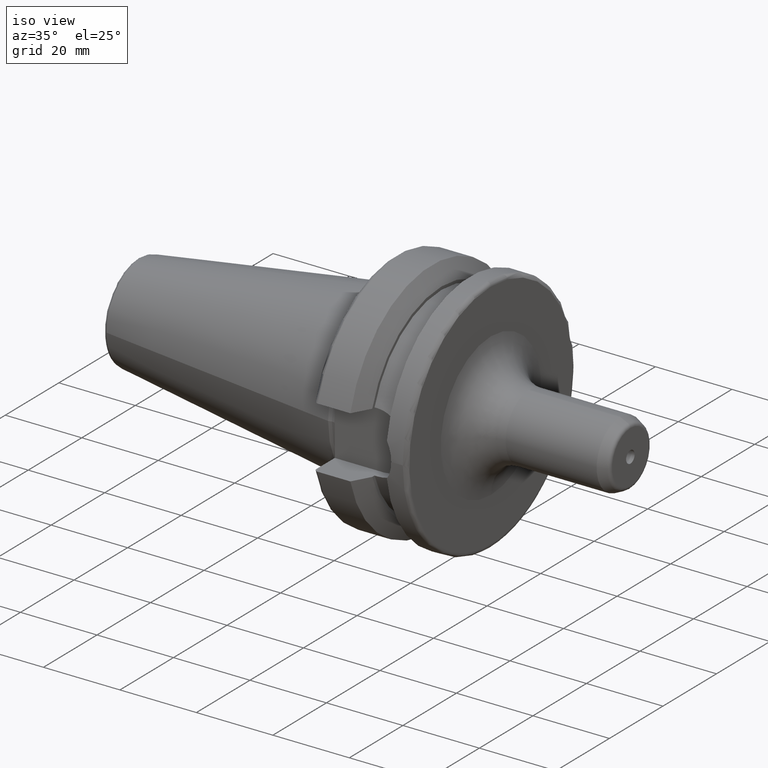
[diagram: clean part render]
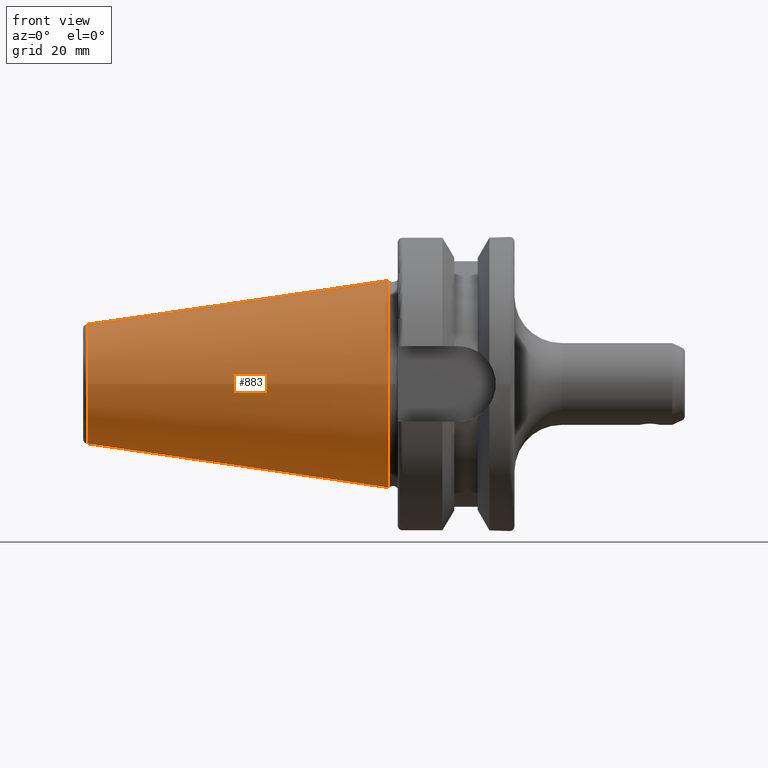
[diagram: tour spotlight — one face highlighted and labeled with its STEP entity id]
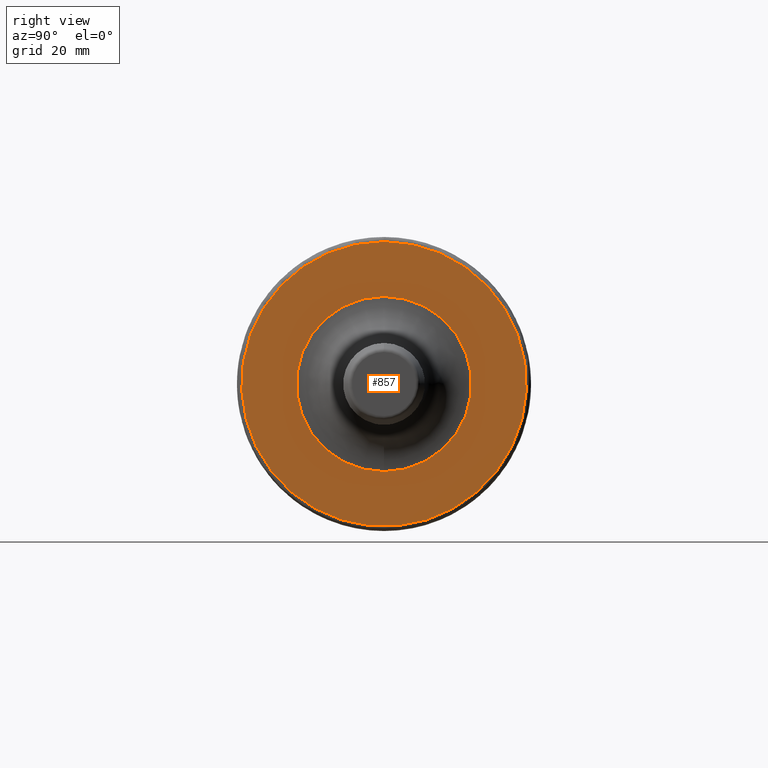
[diagram: tour spotlight — one face highlighted and labeled with its STEP entity id]
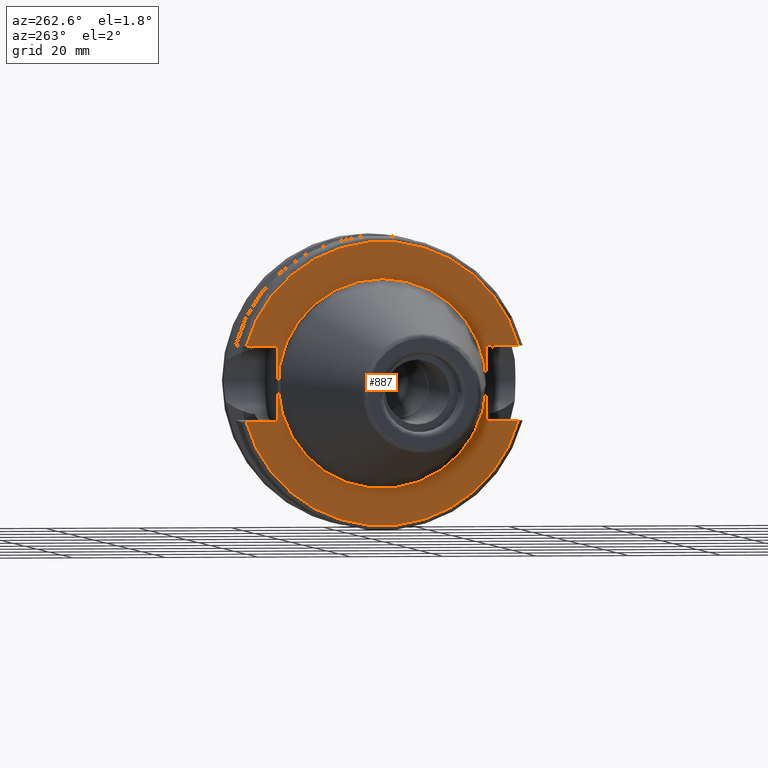
[diagram: tour spotlight — one face highlighted and labeled with its STEP entity id]
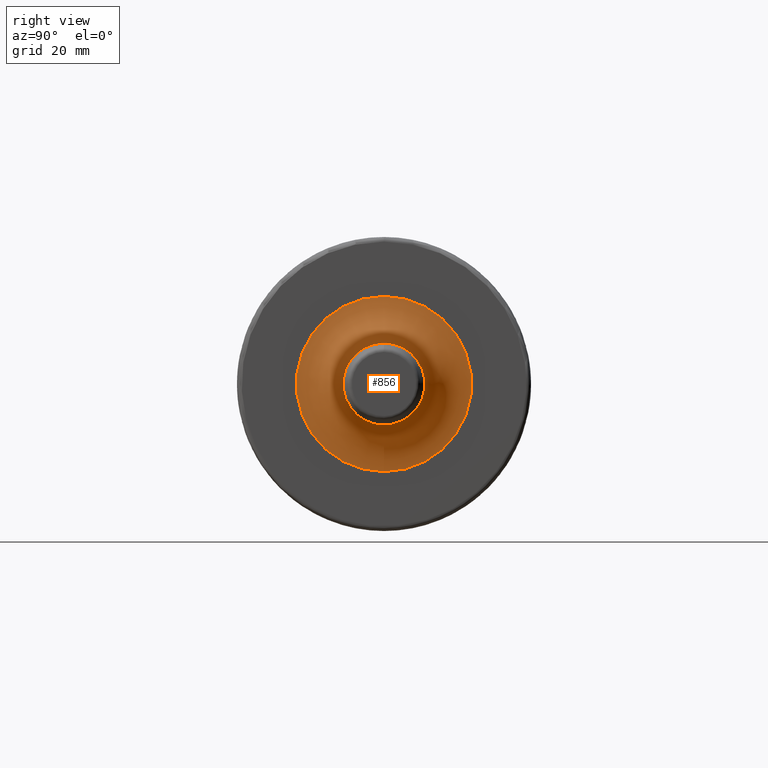
[diagram: tour spotlight — one face highlighted and labeled with its STEP entity id]
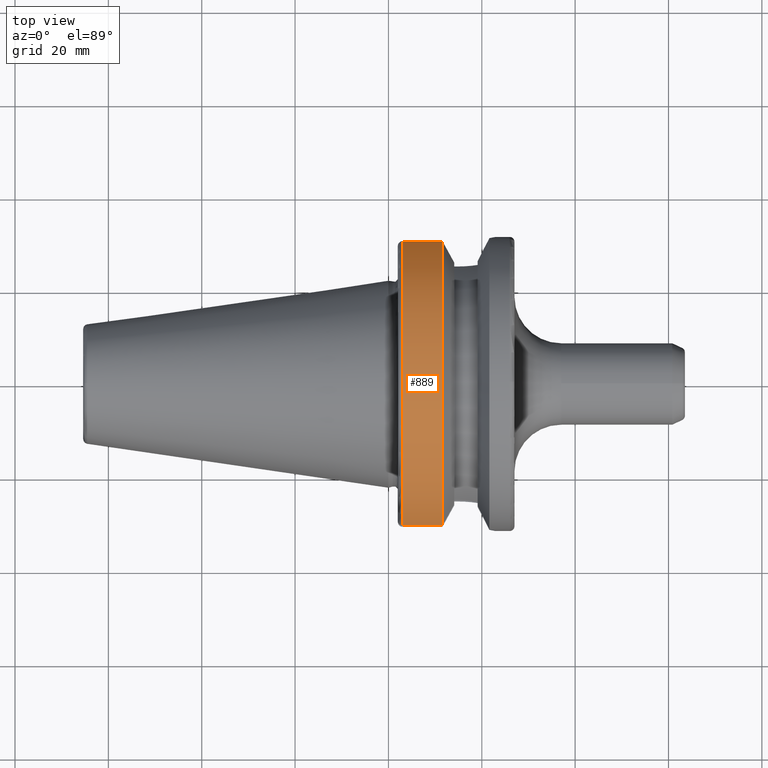
[diagram: tour spotlight — one face highlighted and labeled with its STEP entity id]
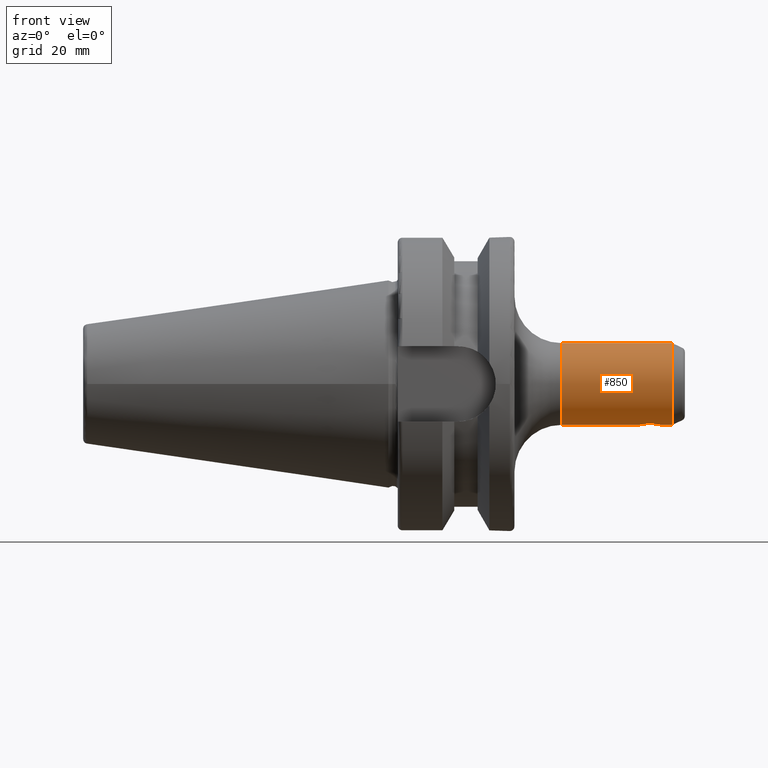
[diagram: tour spotlight — one face highlighted and labeled with its STEP entity id]
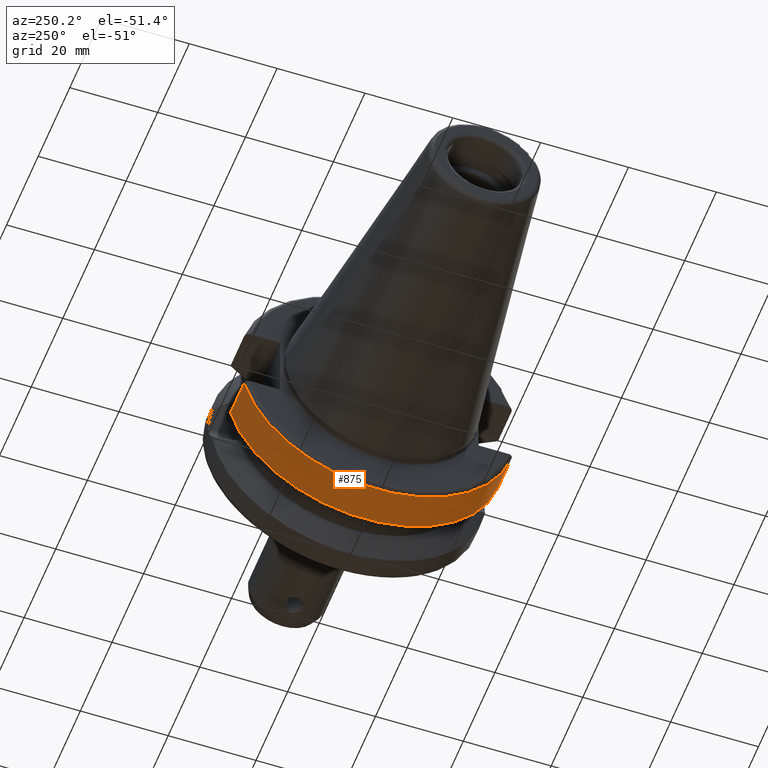
[diagram: tour spotlight — one face highlighted and labeled with its STEP entity id]
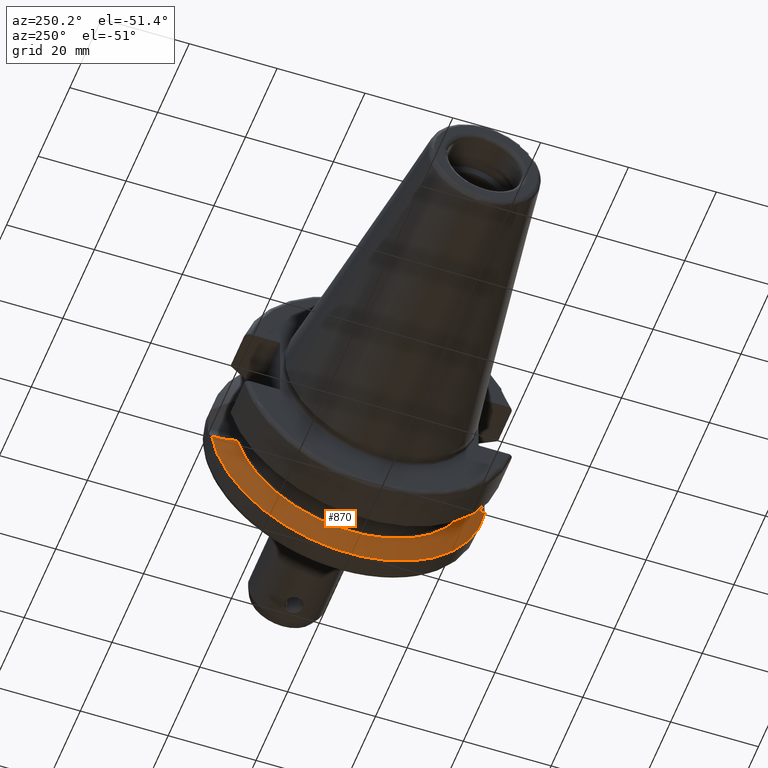
[diagram: tour spotlight — one face highlighted and labeled with its STEP entity id]
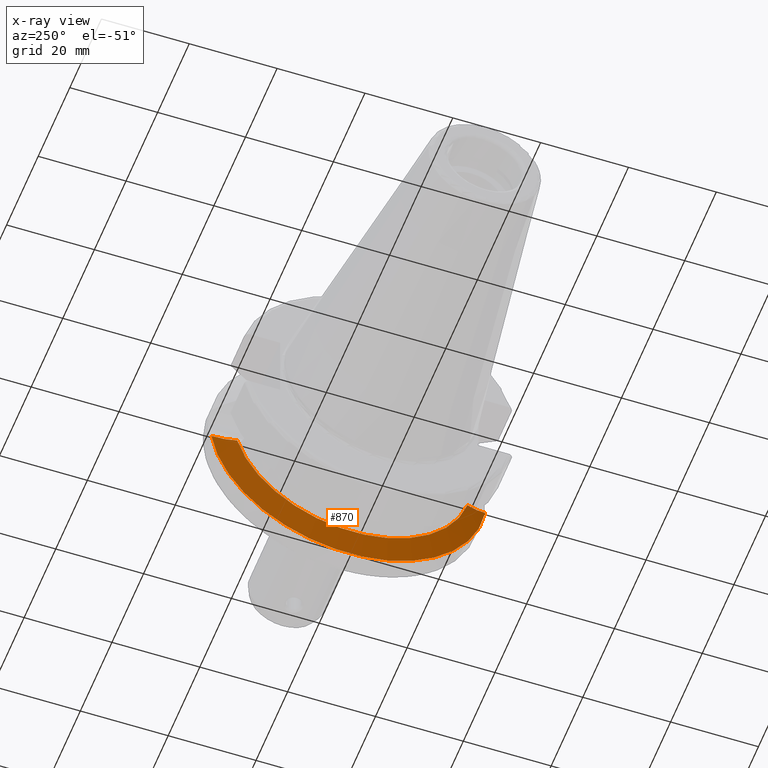
[diagram: x-ray of the same camera — body ghosted, this tour face saturated]
A machine part: a face-by-face anatomy tour. The part has 53 B-rep faces; the first image is the clean iso view, then the 8 largest visible faces are spotlighted one at a time (largest first), each with its STEP entity span.

Face 1 — front view, entity #883. In plain terms, the highlighted conical surface has half-angle 8.297 deg.
Definition (entity closure, byte-faithful):
#51=CONICAL_SURFACE('',#996,17.5186442890469,0.144812498238939);
#96=CIRCLE('',#992,12.8122885780937);
#97=CIRCLE('',#993,12.8122885780937);
#100=CIRCLE('',#997,22.225);
#171=FACE_OUTER_BOUND('',#228,.T.);
#228=EDGE_LOOP('',(#766,#767,#768,#769,#770));
#313=LINE('',#1846,#361);
#361=VECTOR('',#1226,17.5186442890469);
#437=VERTEX_POINT('',#1836);
#438=VERTEX_POINT('',#1837);
#440=VERTEX_POINT('',#1844);
#553=EDGE_CURVE('',#437,#438,#96,.T.);
#554=EDGE_CURVE('',#438,#437,#97,.T.);
#557=EDGE_CURVE('',#440,#440,#100,.T.);
#558=EDGE_CURVE('',#440,#437,#313,.T.);
#766=ORIENTED_EDGE('',*,*,#557,.F.);
#767=ORIENTED_EDGE('',*,*,#558,.T.);
#768=ORIENTED_EDGE('',*,*,#553,.T.);
#769=ORIENTED_EDGE('',*,*,#554,.T.);
#770=ORIENTED_EDGE('',*,*,#558,.F.);
#883=ADVANCED_FACE('',(#171),#51,.T.);
#992=AXIS2_PLACEMENT_3D('',#1838,#1214,#1215);
#993=AXIS2_PLACEMENT_3D('',#1839,#1216,#1217);
#996=AXIS2_PLACEMENT_3D('',#1843,#1222,#1223);
#997=AXIS2_PLACEMENT_3D('',#1845,#1224,#1225);
#1214=DIRECTION('center_axis',(1.,0.,0.));
#1215=DIRECTION('ref_axis',(0.,0.,-1.));
#1216=DIRECTION('center_axis',(1.,0.,0.));
#1217=DIRECTION('ref_axis',(0.,0.,-1.));
#1222=DIRECTION('center_axis',(1.,0.,0.));
#1223=DIRECTION('ref_axis',(0.,1.,0.));
#1224=DIRECTION('center_axis',(1.,0.,0.));
#1225=DIRECTION('ref_axis',(0.,0.,-1.));
#1226=DIRECTION('',(-0.989532981063282,0.144306893071729,1.76724974695192E-17));
#1836=CARTESIAN_POINT('',(-64.5443068930717,-12.8122885780937,-1.56905281969147E-15));
#1837=CARTESIAN_POINT('',(-64.5443068930717,-1.56905281969147E-15,12.8122885780937));
#1838=CARTESIAN_POINT('Origin',(-64.5443068930717,0.,0.));
#1839=CARTESIAN_POINT('Origin',(-64.5443068930717,0.,0.));
#1843=CARTESIAN_POINT('Origin',(-32.2721534465359,0.,0.));
#1844=CARTESIAN_POINT('',(4.44089209850063E-15,-22.225,-2.72177751110499E-15));
#1845=CARTESIAN_POINT('Origin',(0.,0.,0.));
#1846=CARTESIAN_POINT('',(-32.2721534465359,-17.5186442890469,-2.14541516539823E-15));

Face 2 — right view, entity #857. In plain terms, the highlighted planar face has unit normal (1, 0, 0).
Definition (entity closure, byte-faithful):
#20=PLANE('',#943);
#57=FACE_BOUND('',#201,.T.);
#72=CIRCLE('',#942,18.763);
#73=CIRCLE('',#944,30.5);
#145=FACE_OUTER_BOUND('',#200,.T.);
#200=EDGE_LOOP('',(#620));
#201=EDGE_LOOP('',(#621));
#380=VERTEX_POINT('',#1568);
#381=VERTEX_POINT('',#1572);
#472=EDGE_CURVE('',#380,#380,#72,.T.);
#473=EDGE_CURVE('',#381,#381,#73,.T.);
#620=ORIENTED_EDGE('',*,*,#473,.T.);
#621=ORIENTED_EDGE('',*,*,#472,.F.);
#857=ADVANCED_FACE('',(#145,#57),#20,.T.);
#942=AXIS2_PLACEMENT_3D('',#1570,#1076,#1077);
#943=AXIS2_PLACEMENT_3D('',#1571,#1078,#1079);
#944=AXIS2_PLACEMENT_3D('',#1573,#1080,#1081);
#1076=DIRECTION('center_axis',(1.,0.,0.));
#1077=DIRECTION('ref_axis',(0.,-1.22464679914735E-16,1.));
#1078=DIRECTION('center_axis',(1.,0.,0.));
#1079=DIRECTION('ref_axis',(0.,0.,-1.));
#1080=DIRECTION('center_axis',(1.,0.,0.));
#1081=DIRECTION('ref_axis',(0.,0.,-1.));
#1568=CARTESIAN_POINT('',(27.,4.59560957848036E-15,-18.763));
#1570=CARTESIAN_POINT('Origin',(27.,0.,0.));
#1571=CARTESIAN_POINT('Origin',(27.,0.,0.));
#1572=CARTESIAN_POINT('',(27.,-3.73517273739943E-15,30.5));
#1573=CARTESIAN_POINT('Origin',(27.,0.,0.));

Face 3 — auxiliary view, entity #887. In plain terms, the highlighted planar face has unit normal (-1, 0, 0).
Definition (entity closure, byte-faithful):
#29=PLANE('',#1006);
#59=FACE_BOUND('',#233,.T.);
#93=CIRCLE('',#983,30.5);
#105=CIRCLE('',#1005,22.5);
#106=CIRCLE('',#1007,30.5);
#175=FACE_OUTER_BOUND('',#232,.T.);
#232=EDGE_LOOP('',(#785,#786,#787,#788,#789,#790,#791,#792));
#233=EDGE_LOOP('',(#793));
#289=LINE('',#1680,#337);
#293=LINE('',#1688,#341);
#296=LINE('',#1708,#344);
#307=LINE('',#1808,#355);
#310=LINE('',#1829,#358);
#312=LINE('',#1832,#360);
#337=VECTOR('',#1132,10.);
#341=VECTOR('',#1138,10.);
#344=VECTOR('',#1143,10.);
#355=VECTOR('',#1198,10.);
#358=VECTOR('',#1203,10.);
#360=VECTOR('',#1207,10.);
#405=VERTEX_POINT('',#1668);
#406=VERTEX_POINT('',#1679);
#408=VERTEX_POINT('',#1685);
#409=VERTEX_POINT('',#1687);
#424=VERTEX_POINT('',#1768);
#431=VERTEX_POINT('',#1805);
#432=VERTEX_POINT('',#1807);
#436=VERTEX_POINT('',#1828);
#444=VERTEX_POINT('',#1858);
#505=EDGE_CURVE('',#406,#405,#289,.T.);
#509=EDGE_CURVE('',#409,#408,#293,.T.);
#514=EDGE_CURVE('',#408,#406,#296,.T.);
#534=EDGE_CURVE('',#409,#424,#93,.T.);
#544=EDGE_CURVE('',#432,#431,#307,.T.);
#549=EDGE_CURVE('',#436,#424,#310,.T.);
#551=EDGE_CURVE('',#431,#436,#312,.T.);
#565=EDGE_CURVE('',#444,#444,#105,.T.);
#566=EDGE_CURVE('',#432,#405,#106,.T.);
#785=ORIENTED_EDGE('',*,*,#505,.T.);
#786=ORIENTED_EDGE('',*,*,#566,.F.);
#787=ORIENTED_EDGE('',*,*,#544,.T.);
#788=ORIENTED_EDGE('',*,*,#551,.T.);
#789=ORIENTED_EDGE('',*,*,#549,.T.);
#790=ORIENTED_EDGE('',*,*,#534,.F.);
#791=ORIENTED_EDGE('',*,*,#509,.T.);
#792=ORIENTED_EDGE('',*,*,#514,.T.);
#793=ORIENTED_EDGE('',*,*,#565,.T.);
#887=ADVANCED_FACE('',(#175,#59),#29,.T.);
#983=AXIS2_PLACEMENT_3D('',#1769,#1185,#1186);
#1005=AXIS2_PLACEMENT_3D('',#1860,#1243,#1244);
#1006=AXIS2_PLACEMENT_3D('',#1861,#1245,#1246);
#1007=AXIS2_PLACEMENT_3D('',#1862,#1247,#1248);
#1132=DIRECTION('',(0.,-1.,0.));
#1138=DIRECTION('',(0.,1.,0.));
#1143=DIRECTION('',(0.,0.,1.));
#1185=DIRECTION('center_axis',(1.,0.,0.));
#1186=DIRECTION('ref_axis',(0.,0.,-1.));
#1198=DIRECTION('',(0.,-1.,0.));
#1203=DIRECTION('',(0.,1.,0.));
#1207=DIRECTION('',(0.,0.,-1.));
#1243=DIRECTION('center_axis',(1.,0.,0.));
#1244=DIRECTION('ref_axis',(0.,0.,-1.));
#1245=DIRECTION('center_axis',(-1.,0.,0.));
#1246=DIRECTION('ref_axis',(0.,0.,1.));
#1247=DIRECTION('center_axis',(1.,0.,0.));
#1248=DIRECTION('ref_axis',(0.,0.,-1.));
#1668=CARTESIAN_POINT('',(1.99999999999999,-29.4184890842477,8.05));
#1679=CARTESIAN_POINT('',(1.99999999999999,-22.6,8.05));
#1680=CARTESIAN_POINT('',(1.99999999999999,3.95,8.05));
#1685=CARTESIAN_POINT('',(1.99999999999999,-22.6,-8.05));
#1687=CARTESIAN_POINT('',(1.99999999999999,-29.4184890842477,-8.05));
#1688=CARTESIAN_POINT('',(1.99999999999999,3.95,-8.05));
#1708=CARTESIAN_POINT('',(1.99999999999999,-22.6,0.));
#1768=CARTESIAN_POINT('',(1.99999999999999,29.4184890842477,-8.05));
#1769=CARTESIAN_POINT('Origin',(1.99999999999999,0.,0.));
#1805=CARTESIAN_POINT('',(1.99999999999999,22.6,8.05));
#1807=CARTESIAN_POINT('',(1.99999999999999,29.4184890842477,8.05));
#1808=CARTESIAN_POINT('',(1.99999999999999,26.55,8.05));
#1828=CARTESIAN_POINT('',(1.99999999999999,22.6,-8.05));
#1829=CARTESIAN_POINT('',(1.99999999999999,26.55,-8.05));
#1832=CARTESIAN_POINT('',(1.99999999999999,22.6,0.));
#1858=CARTESIAN_POINT('',(2.,-2.75545529808154E-15,22.5));
#1860=CARTESIAN_POINT('Origin',(2.,0.,0.));
#1861=CARTESIAN_POINT('Origin',(1.99999999999999,30.5,0.));
#1862=CARTESIAN_POINT('Origin',(1.99999999999999,0.,0.));

Face 4 — right view, entity #856. In plain terms, the highlighted toroidal blend (fillet) surface has major radius 18.763 mm and minor (blend) radius 10 mm.
Definition (entity closure, byte-faithful):
#35=TOROIDAL_SURFACE('',#940,18.763,10.);
#65=CIRCLE('',#929,8.763);
#66=CIRCLE('',#930,8.763);
#71=CIRCLE('',#941,10.);
#72=CIRCLE('',#942,18.763);
#144=FACE_OUTER_BOUND('',#199,.T.);
#199=EDGE_LOOP('',(#615,#616,#617,#618,#619));
#375=VERTEX_POINT('',#1536);
#376=VERTEX_POINT('',#1538);
#380=VERTEX_POINT('',#1568);
#462=EDGE_CURVE('',#376,#375,#65,.T.);
#463=EDGE_CURVE('',#375,#376,#66,.T.);
#471=EDGE_CURVE('',#376,#380,#71,.T.);
#472=EDGE_CURVE('',#380,#380,#72,.T.);
#615=ORIENTED_EDGE('',*,*,#462,.T.);
#616=ORIENTED_EDGE('',*,*,#463,.T.);
#617=ORIENTED_EDGE('',*,*,#471,.T.);
#618=ORIENTED_EDGE('',*,*,#472,.T.);
#619=ORIENTED_EDGE('',*,*,#471,.F.);
#856=ADVANCED_FACE('',(#144),#35,.F.);
#929=AXIS2_PLACEMENT_3D('',#1539,#1049,#1050);
#930=AXIS2_PLACEMENT_3D('',#1540,#1051,#1052);
#940=AXIS2_PLACEMENT_3D('',#1567,#1072,#1073);
#941=AXIS2_PLACEMENT_3D('',#1569,#1074,#1075);
#942=AXIS2_PLACEMENT_3D('',#1570,#1076,#1077);
#1049=DIRECTION('center_axis',(-1.,0.,0.));
#1050=DIRECTION('ref_axis',(0.,-1.22464679914735E-16,1.));
#1051=DIRECTION('center_axis',(-1.,0.,0.));
#1052=DIRECTION('ref_axis',(0.,-1.22464679914735E-16,1.));
#1072=DIRECTION('center_axis',(-1.,0.,0.));
#1073=DIRECTION('ref_axis',(0.,0.,1.));
#1074=DIRECTION('center_axis',(0.,-1.,1.22464679914735E-16));
#1075=DIRECTION('ref_axis',(0.,-1.22464679914735E-16,-1.));
#1076=DIRECTION('center_axis',(1.,0.,0.));
#1077=DIRECTION('ref_axis',(0.,-1.22464679914735E-16,1.));
#1536=CARTESIAN_POINT('',(37.,-1.07315799009283E-15,8.763));
#1538=CARTESIAN_POINT('',(37.,0.,-8.763));
#1539=CARTESIAN_POINT('Origin',(37.,0.,0.));
#1540=CARTESIAN_POINT('Origin',(37.,0.,0.));
#1567=CARTESIAN_POINT('Origin',(37.,0.,0.));
#1568=CARTESIAN_POINT('',(27.,4.59560957848036E-15,-18.763));
#1569=CARTESIAN_POINT('Origin',(37.,-2.29780478924018E-15,-18.763));
#1570=CARTESIAN_POINT('Origin',(27.,0.,0.));

Face 5 — top view, entity #889. In plain terms, the highlighted cylindrical surface (partial cylindrical patch) has radius 31.5 mm, axis along (1, 0, 0).
Definition (entity closure, byte-faithful):
#107=CIRCLE('',#1009,31.5);
#108=CIRCLE('',#1011,31.5000000000001);
#132=CYLINDRICAL_SURFACE('',#1010,31.5);
#177=FACE_OUTER_BOUND('',#235,.T.);
#235=EDGE_LOOP('',(#798,#799,#800,#801));
#288=LINE('',#1667,#336);
#308=LINE('',#1821,#356);
#336=VECTOR('',#1131,10.);
#356=VECTOR('',#1199,10.);
#403=VERTEX_POINT('',#1662);
#404=VERTEX_POINT('',#1666);
#433=VERTEX_POINT('',#1809);
#434=VERTEX_POINT('',#1820);
#503=EDGE_CURVE('',#404,#403,#288,.T.);
#546=EDGE_CURVE('',#434,#433,#308,.T.);
#567=EDGE_CURVE('',#433,#404,#107,.T.);
#568=EDGE_CURVE('',#434,#403,#108,.T.);
#798=ORIENTED_EDGE('',*,*,#503,.T.);
#799=ORIENTED_EDGE('',*,*,#568,.F.);
#800=ORIENTED_EDGE('',*,*,#546,.T.);
#801=ORIENTED_EDGE('',*,*,#567,.T.);
#889=ADVANCED_FACE('',(#177),#132,.T.);
#1009=AXIS2_PLACEMENT_3D('',#1864,#1251,#1252);
#1010=AXIS2_PLACEMENT_3D('',#1865,#1253,#1254);
#1011=AXIS2_PLACEMENT_3D('',#1866,#1255,#1256);
#1131=DIRECTION('',(1.,0.,0.));
#1199=DIRECTION('',(-1.,0.,0.));
#1251=DIRECTION('center_axis',(1.,0.,0.));
#1252=DIRECTION('ref_axis',(0.,0.,-1.));
#1253=DIRECTION('center_axis',(1.,0.,0.));
#1254=DIRECTION('ref_axis',(0.,1.,0.));
#1255=DIRECTION('center_axis',(1.,0.,0.));
#1256=DIRECTION('ref_axis',(0.,0.,-1.));
#1662=CARTESIAN_POINT('',(11.5690363073382,-30.4540227227866,8.05));
#1666=CARTESIAN_POINT('',(2.99999999999999,-30.4540227227866,8.05));
#1667=CARTESIAN_POINT('',(7.28451815366907,-30.4540227227866,8.05));
#1809=CARTESIAN_POINT('',(2.99999999999999,30.4540227227866,8.05));
#1820=CARTESIAN_POINT('',(11.5690363073382,30.4540227227866,8.05));
#1821=CARTESIAN_POINT('',(7.28451815366907,30.4540227227866,8.05));
#1864=CARTESIAN_POINT('Origin',(2.99999999999999,0.,0.));
#1865=CARTESIAN_POINT('Origin',(7.28451815366907,0.,0.));
#1866=CARTESIAN_POINT('Origin',(11.5690363073382,0.,0.));

Face 6 — front view, entity #850. In plain terms, the highlighted cylindrical surface (bore or boss wall) has radius 8.763 mm, axis along (1, 0, 0).
Definition (entity closure, byte-faithful):
#55=FACE_BOUND('',#192,.T.);
#64=CIRCLE('',#928,8.763);
#65=CIRCLE('',#929,8.763);
#66=CIRCLE('',#930,8.763);
#121=CYLINDRICAL_SURFACE('',#927,8.763);
#138=FACE_OUTER_BOUND('',#191,.T.);
#191=EDGE_LOOP('',(#595,#596,#597,#598,#599));
#192=EDGE_LOOP('',(#600));
#250=B_SPLINE_CURVE_WITH_KNOTS('',3,(#1443,#1444,#1445,#1446,#1447,#1448,
#1449,#1450,#1451,#1452,#1453,#1454,#1455,#1456,#1457,#1458,#1459,#1460,
#1461,#1462,#1463,#1464,#1465,#1466,#1467,#1468,#1469),.UNSPECIFIED.,.T.,
 .F.,(4,1,1,1,2,2,2,1,1,1,1,1,1,1,2,1,1,2,1,4),(-1.74584149461041,-1.69907822560346,
-1.65231495659652,-1.60555168758957,-1.55878841858263,-1.49643556680892,
-1.43408271503521,-1.38731944602827,-1.34055617702132,-1.29379290801438,
-1.24702963900743,-1.22364800450396,-1.15350310099354,-1.1067398319866,
-1.05997656297966,-0.966447285319092,-0.93137380619638,-0.872918007658528,
-0.810567895531494,-0.74821778340446),.UNSPECIFIED.);
#273=LINE('',#1537,#321);
#321=VECTOR('',#1048,8.763);
#367=VERTEX_POINT('',#1413);
#374=VERTEX_POINT('',#1534);
#375=VERTEX_POINT('',#1536);
#376=VERTEX_POINT('',#1538);
#453=EDGE_CURVE('',#367,#367,#250,.T.);
#460=EDGE_CURVE('',#374,#374,#64,.T.);
#461=EDGE_CURVE('',#374,#375,#273,.T.);
#462=EDGE_CURVE('',#376,#375,#65,.T.);
#463=EDGE_CURVE('',#375,#376,#66,.T.);
#595=ORIENTED_EDGE('',*,*,#460,.F.);
#596=ORIENTED_EDGE('',*,*,#461,.T.);
#597=ORIENTED_EDGE('',*,*,#462,.F.);
#598=ORIENTED_EDGE('',*,*,#463,.F.);
#599=ORIENTED_EDGE('',*,*,#461,.F.);
#600=ORIENTED_EDGE('',*,*,#453,.F.);
#850=ADVANCED_FACE('',(#138,#55),#121,.T.);
#927=AXIS2_PLACEMENT_3D('',#1533,#1044,#1045);
#928=AXIS2_PLACEMENT_3D('',#1535,#1046,#1047);
#929=AXIS2_PLACEMENT_3D('',#1539,#1049,#1050);
#930=AXIS2_PLACEMENT_3D('',#1540,#1051,#1052);
#1044=DIRECTION('center_axis',(1.,0.,0.));
#1045=DIRECTION('ref_axis',(0.,0.,-1.));
#1046=DIRECTION('center_axis',(1.,0.,0.));
#1047=DIRECTION('ref_axis',(0.,0.,-1.));
#1048=DIRECTION('',(-1.,0.,0.));
#1049=DIRECTION('center_axis',(-1.,0.,0.));
#1050=DIRECTION('ref_axis',(0.,-1.22464679914735E-16,1.));
#1051=DIRECTION('center_axis',(-1.,0.,0.));
#1052=DIRECTION('ref_axis',(0.,-1.22464679914735E-16,1.));
#1413=CARTESIAN_POINT('',(53.849,5.55111512312578E-16,-8.763));
#1443=CARTESIAN_POINT('Ctrl Pts',(53.849,5.55111512312578E-16,-8.763));
#1444=CARTESIAN_POINT('Ctrl Pts',(53.849,0.203084578303965,-8.763));
#1445=CARTESIAN_POINT('Ctrl Pts',(53.9065845367555,0.628123342022542,-8.74825600958581));
#1446=CARTESIAN_POINT('Ctrl Pts',(54.1939356377472,1.22134133004058,-8.6828276865605));
#1447=CARTESIAN_POINT('Ctrl Pts',(54.6062640275504,1.6712139470627,-8.60507359189296));
#1448=CARTESIAN_POINT('Ctrl Pts',(54.9733026125055,1.89454005282467,-8.55625353964518));
#1449=CARTESIAN_POINT('Ctrl Pts',(55.4377490889539,2.08561836056404,-8.51185134080867));
#1450=CARTESIAN_POINT('Ctrl Pts',(55.7271410441846,2.13923004649744,-8.49783542933694));
#1451=CARTESIAN_POINT('Ctrl Pts',(56.2715238938366,2.1391932657668,-8.49783879786927));
#1452=CARTESIAN_POINT('Ctrl Pts',(56.5610171686682,2.08547916373928,-8.51185841183461));
#1453=CARTESIAN_POINT('Ctrl Pts',(57.0254803916342,1.89470631182278,-8.55614681476904));
#1454=CARTESIAN_POINT('Ctrl Pts',(57.3940500837323,1.66979136637788,-8.60524168658441));
#1455=CARTESIAN_POINT('Ctrl Pts',(57.8040322287286,1.22303165489786,-8.6825405408245));
#1456=CARTESIAN_POINT('Ctrl Pts',(58.0918339122296,0.626675289059246,-8.7481884165071));
#1457=CARTESIAN_POINT('Ctrl Pts',(58.1623219128046,0.100915460042836,-8.76618384178872));
#1458=CARTESIAN_POINT('Ctrl Pts',(58.123288809187,-0.514849811990958,-8.75645196335564));
#1459=CARTESIAN_POINT('Ctrl Pts',(57.8748402215977,-1.14892174741336,-8.69618219866076));
#1460=CARTESIAN_POINT('Ctrl Pts',(57.3916594859608,-1.66946700352219,-8.60469801729155));
#1461=CARTESIAN_POINT('Ctrl Pts',(57.0254355800494,-1.89476305119613,-8.55606498703377));
#1462=CARTESIAN_POINT('Ctrl Pts',(56.4225058542061,-2.13919401692892,-8.4987399723397));
#1463=CARTESIAN_POINT('Ctrl Pts',(55.8439001074278,-2.19569101905608,-8.48368739306606));
#1464=CARTESIAN_POINT('Ctrl Pts',(55.0129788215622,-1.94048751689932,-8.54690931300775));
#1465=CARTESIAN_POINT('Ctrl Pts',(54.6564114428877,-1.69227617164563,-8.59977397566702));
#1466=CARTESIAN_POINT('Ctrl Pts',(54.2877101527128,-1.32658787171991,-8.66389653103566));
#1467=CARTESIAN_POINT('Ctrl Pts',(53.9582244041357,-0.847203840613475,-8.7348089943183));
#1468=CARTESIAN_POINT('Ctrl Pts',(53.849,-0.27077547180541,-8.763));
#1469=CARTESIAN_POINT('Ctrl Pts',(53.849,-7.63278329429795E-16,-8.763));
#1533=CARTESIAN_POINT('Origin',(43.8957438796982,0.,0.));
#1534=CARTESIAN_POINT('',(60.7914877593964,-1.07315799009283E-15,8.763));
#1535=CARTESIAN_POINT('Origin',(60.7914877593964,0.,0.));
#1536=CARTESIAN_POINT('',(37.,-1.07315799009283E-15,8.763));
#1537=CARTESIAN_POINT('',(43.8957438796982,-1.07315799009283E-15,8.763));
#1538=CARTESIAN_POINT('',(37.,0.,-8.763));
#1539=CARTESIAN_POINT('Origin',(37.,0.,0.));
#1540=CARTESIAN_POINT('Origin',(37.,0.,0.));

Face 7 — auxiliary view, entity #875. In plain terms, the highlighted cylindrical surface (partial cylindrical patch) has radius 31.5 mm, axis along (1, 0, 0).
Definition (entity closure, byte-faithful):
#91=CIRCLE('',#979,31.5000000000001);
#92=CIRCLE('',#981,31.5);
#129=CYLINDRICAL_SURFACE('',#980,31.5);
#163=FACE_OUTER_BOUND('',#220,.T.);
#220=EDGE_LOOP('',(#719,#720,#721,#722));
#294=LINE('',#1701,#342);
#301=LINE('',#1766,#349);
#342=VECTOR('',#1139,10.);
#349=VECTOR('',#1182,10.);
#410=VERTEX_POINT('',#1689);
#411=VERTEX_POINT('',#1700);
#422=VERTEX_POINT('',#1758);
#423=VERTEX_POINT('',#1764);
#511=EDGE_CURVE('',#411,#410,#294,.T.);
#530=EDGE_CURVE('',#411,#422,#91,.T.);
#532=EDGE_CURVE('',#410,#423,#92,.T.);
#533=EDGE_CURVE('',#423,#422,#301,.T.);
#719=ORIENTED_EDGE('',*,*,#511,.T.);
#720=ORIENTED_EDGE('',*,*,#532,.T.);
#721=ORIENTED_EDGE('',*,*,#533,.T.);
#722=ORIENTED_EDGE('',*,*,#530,.F.);
#875=ADVANCED_FACE('',(#163),#129,.T.);
#979=AXIS2_PLACEMENT_3D('',#1759,#1176,#1177);
#980=AXIS2_PLACEMENT_3D('',#1763,#1178,#1179);
#981=AXIS2_PLACEMENT_3D('',#1765,#1180,#1181);
#1139=DIRECTION('',(-1.,0.,0.));
#1176=DIRECTION('center_axis',(1.,0.,0.));
#1177=DIRECTION('ref_axis',(0.,0.,-1.));
#1178=DIRECTION('center_axis',(1.,0.,0.));
#1179=DIRECTION('ref_axis',(0.,1.,0.));
#1180=DIRECTION('center_axis',(1.,0.,0.));
#1181=DIRECTION('ref_axis',(0.,0.,-1.));
#1182=DIRECTION('',(1.,0.,0.));
#1689=CARTESIAN_POINT('',(2.99999999999999,-30.4540227227866,-8.05));
#1700=CARTESIAN_POINT('',(11.5690363073382,-30.4540227227866,-8.05));
#1701=CARTESIAN_POINT('',(7.28451815366907,-30.4540227227866,-8.05));
#1758=CARTESIAN_POINT('',(11.5690363073382,30.4540227227866,-8.05));
#1759=CARTESIAN_POINT('Origin',(11.5690363073382,0.,0.));
#1763=CARTESIAN_POINT('Origin',(7.28451815366907,0.,0.));
#1764=CARTESIAN_POINT('',(2.99999999999999,30.4540227227866,-8.05));
#1765=CARTESIAN_POINT('Origin',(2.99999999999999,0.,0.));
#1766=CARTESIAN_POINT('',(7.28451815366907,30.4540227227866,-8.05));

Face 8 — auxiliary view, entity #870. An x-ray twin of the same camera follows (body ghosted, this face saturated) — the face is partly hidden behind the body. In plain terms, the highlighted conical surface has half-angle 60.125 deg.
Definition (entity closure, byte-faithful):
#48=CONICAL_SURFACE('',#970,29.2970358274569,1.0493792127616);
#84=CIRCLE('',#967,31.5);
#87=CIRCLE('',#971,27.0940716549138);
#158=FACE_OUTER_BOUND('',#215,.T.);
#215=EDGE_LOOP('',(#697,#698,#699,#700));
#257=B_SPLINE_CURVE_WITH_KNOTS('',3,(#1616,#1617,#1618,#1619,#1620,#1621),
 .UNSPECIFIED.,.F.,.F.,(4,2,4),(3.12975744792551,3.6269928875698,3.7084873746139),
 .UNSPECIFIED.);
#265=B_SPLINE_CURVE_WITH_KNOTS('',3,(#1732,#1733,#1734,#1735,#1736,#1737),
 .UNSPECIFIED.,.F.,.F.,(4,2,4),(1.46421027899563,1.54570476603974,2.04294020568402),
 .UNSPECIFIED.);
#392=VERTEX_POINT('',#1613);
#393=VERTEX_POINT('',#1615);
#415=VERTEX_POINT('',#1714);
#417=VERTEX_POINT('',#1730);
#491=EDGE_CURVE('',#393,#392,#257,.T.);
#517=EDGE_CURVE('',#393,#415,#84,.T.);
#521=EDGE_CURVE('',#392,#417,#87,.T.);
#522=EDGE_CURVE('',#417,#415,#265,.T.);
#697=ORIENTED_EDGE('',*,*,#491,.T.);
#698=ORIENTED_EDGE('',*,*,#521,.T.);
#699=ORIENTED_EDGE('',*,*,#522,.T.);
#700=ORIENTED_EDGE('',*,*,#517,.F.);
#870=ADVANCED_FACE('',(#158),#48,.T.);
#967=AXIS2_PLACEMENT_3D('',#1715,#1149,#1150);
#970=AXIS2_PLACEMENT_3D('',#1729,#1155,#1156);
#971=AXIS2_PLACEMENT_3D('',#1731,#1157,#1158);
#1149=DIRECTION('center_axis',(1.,0.,0.));
#1150=DIRECTION('ref_axis',(0.,0.,-1.));
#1155=DIRECTION('center_axis',(1.,0.,0.));
#1156=DIRECTION('ref_axis',(0.,1.,0.));
#1157=DIRECTION('center_axis',(1.,0.,0.));
#1158=DIRECTION('ref_axis',(0.,0.,-1.));
#1613=CARTESIAN_POINT('',(19.1,-26.201311395455,-6.89782574439221));
#1615=CARTESIAN_POINT('',(21.6309636926618,-31.1782420264945,-4.49079326370462));
#1616=CARTESIAN_POINT('Ctrl Pts',(21.6309636926618,-31.1782420264945,-4.49079326370461));
#1617=CARTESIAN_POINT('Ctrl Pts',(20.9728756148302,-29.8797957262939,-5.46983244373119));
#1618=CARTESIAN_POINT('Ctrl Pts',(20.1784155384866,-28.3157123387483,-6.1823136897693));
#1619=CARTESIAN_POINT('Ctrl Pts',(19.3406963650696,-26.6728819297427,-6.74867108656043));
#1620=CARTESIAN_POINT('Ctrl Pts',(19.2210929544554,-26.438473693351,-6.82497151762397));
#1621=CARTESIAN_POINT('Ctrl Pts',(19.1,-26.201311395455,-6.89782574439222));
#1714=CARTESIAN_POINT('',(21.6309636926618,31.1782420264945,-4.49079326370462));
#1715=CARTESIAN_POINT('Origin',(21.6309636926618,0.,0.));
#1729=CARTESIAN_POINT('Origin',(20.3654818463309,0.,0.));
#1730=CARTESIAN_POINT('',(19.1,26.201311395455,-6.89782574439221));
#1731=CARTESIAN_POINT('Origin',(19.1,0.,0.));
#1732=CARTESIAN_POINT('Ctrl Pts',(19.1,26.201311395455,-6.89782574439221));
#1733=CARTESIAN_POINT('Ctrl Pts',(19.2210929544554,26.438473693351,-6.82497151762396));
#1734=CARTESIAN_POINT('Ctrl Pts',(19.3406963650696,26.6728819297427,-6.74867108656043));
#1735=CARTESIAN_POINT('Ctrl Pts',(20.1784155384866,28.3157123387483,-6.1823136897693));
#1736=CARTESIAN_POINT('Ctrl Pts',(20.9728756148302,29.8797957262938,-5.46983244373119));
#1737=CARTESIAN_POINT('Ctrl Pts',(21.6309636926618,31.1782420264945,-4.49079326370462));